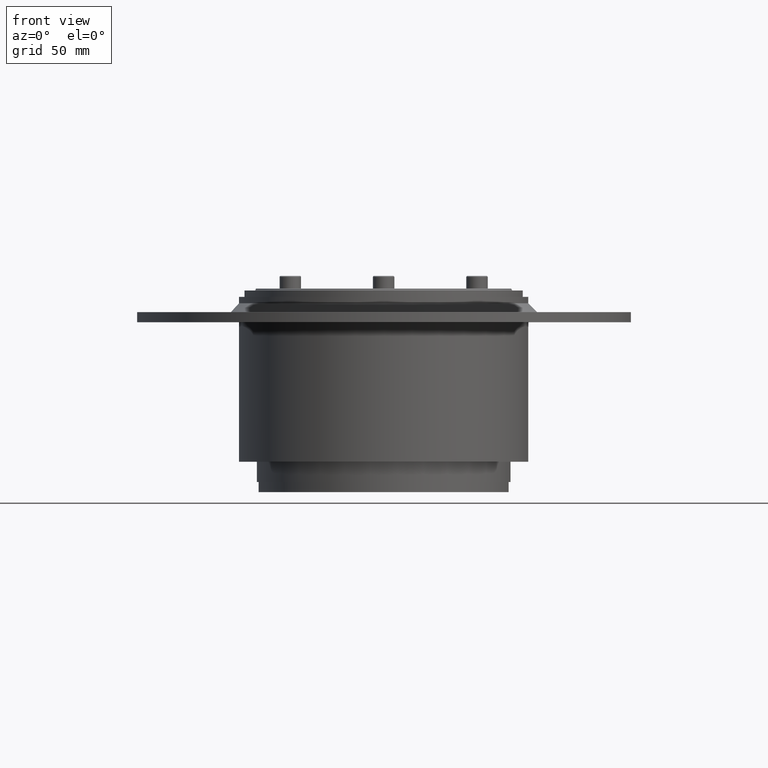
[diagram: clean part render]
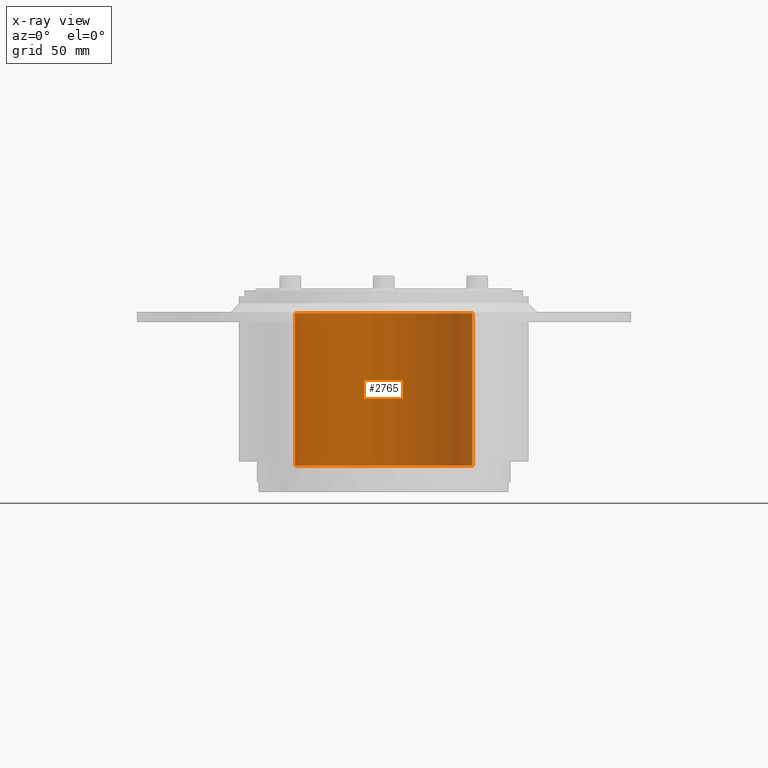
[diagram: x-ray — body ghosted, one internal face saturated and labeled with its STEP entity id]
A machine part, front view, then the same camera in x-ray: the body is ghosted and one INTERNAL B-rep face — a face not visible from any outside direction — is saturated and labeled: STEP entity #2765.
In plain terms, the highlighted cylindrical surface (partial cylindrical patch) has radius 35 mm, axis along (0, -0, 1).
Its self-contained STEP definition (entity closure, byte-faithful):
#2699=CARTESIAN_POINT('',(-30.000000000000004,-3.485297E-015,34.999999999999993));
#2700=VERTEX_POINT('',#2699);
#2707=CARTESIAN_POINT('',(-30.0,7.771561E-015,-34.999999999999993));
#2708=VERTEX_POINT('',#2707);
#2709=CARTESIAN_POINT('',(-30.000000000000004,0.0,0.0));
#2710=DIRECTION('',(1.0,0.0,0.0));
#2711=DIRECTION('',(0.0,0.0,-1.0));
#2712=AXIS2_PLACEMENT_3D('',#2709,#2710,#2711);
#2713=CIRCLE('',#2712,34.999999999999993);
#2714=EDGE_CURVE('',#2708,#2700,#2713,.T.);
#2734=CARTESIAN_POINT('',(0.0,0.0,0.0));
#2735=DIRECTION('',(1.0,0.0,0.0));
#2736=DIRECTION('',(0.0,0.0,-1.0));
#2737=AXIS2_PLACEMENT_3D('',#2734,#2735,#2736);
#2738=CYLINDRICAL_SURFACE('',#2737,34.999999999999993);
#2739=CARTESIAN_POINT('',(30.0,-3.485297E-015,34.999999999999993));
#2740=VERTEX_POINT('',#2739);
#2741=CARTESIAN_POINT('',(-30.0,-3.485297E-015,34.999999999999993));
#2742=DIRECTION('',(1.0,0.0,0.0));
#2743=VECTOR('',#2742,60.0);
#2744=LINE('',#2741,#2743);
#2745=EDGE_CURVE('',#2700,#2740,#2744,.T.);
#2746=ORIENTED_EDGE('',*,*,#2745,.T.);
#2747=CARTESIAN_POINT('',(30.0,7.771561E-015,-34.999999999999993));
#2748=VERTEX_POINT('',#2747);
#2749=CARTESIAN_POINT('',(30.0,0.0,0.0));
#2750=DIRECTION('',(1.0,0.0,0.0));
#2751=DIRECTION('',(0.0,0.0,-1.0));
#2752=AXIS2_PLACEMENT_3D('',#2749,#2750,#2751);
#2753=CIRCLE('',#2752,34.999999999999993);
#2754=EDGE_CURVE('',#2748,#2740,#2753,.T.);
#2755=ORIENTED_EDGE('',*,*,#2754,.F.);
#2756=CARTESIAN_POINT('',(-30.0,7.771561E-015,-34.999999999999993));
#2757=DIRECTION('',(1.0,0.0,0.0));
#2758=VECTOR('',#2757,60.0);
#2759=LINE('',#2756,#2758);
#2760=EDGE_CURVE('',#2708,#2748,#2759,.T.);
#2761=ORIENTED_EDGE('',*,*,#2760,.F.);
#2762=ORIENTED_EDGE('',*,*,#2714,.T.);
#2763=EDGE_LOOP('',(#2746,#2755,#2761,#2762));
#2764=FACE_OUTER_BOUND('',#2763,.T.);
#2765=ADVANCED_FACE('',(#2764),#2738,.T.);